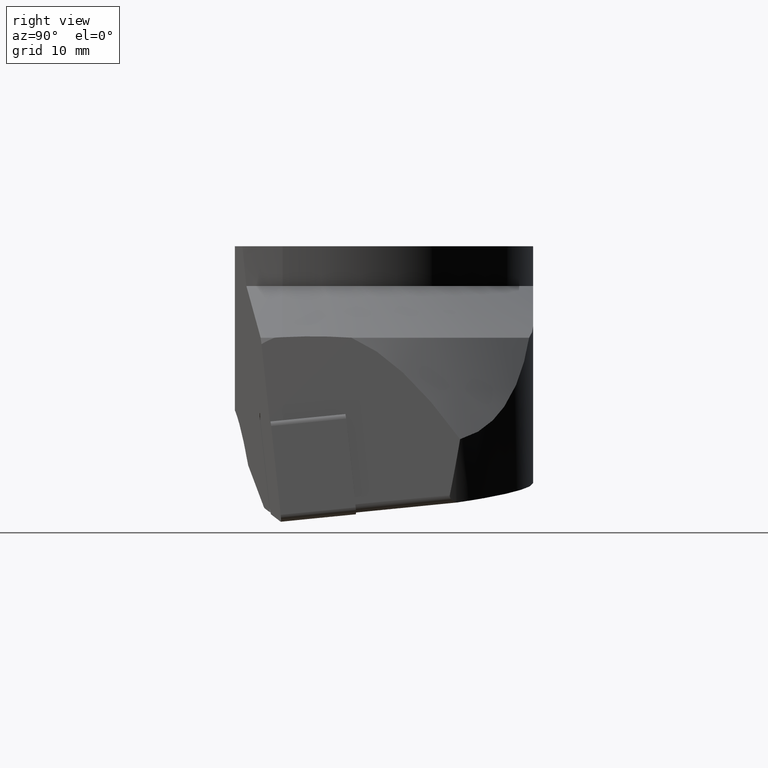
[diagram: clean part render]
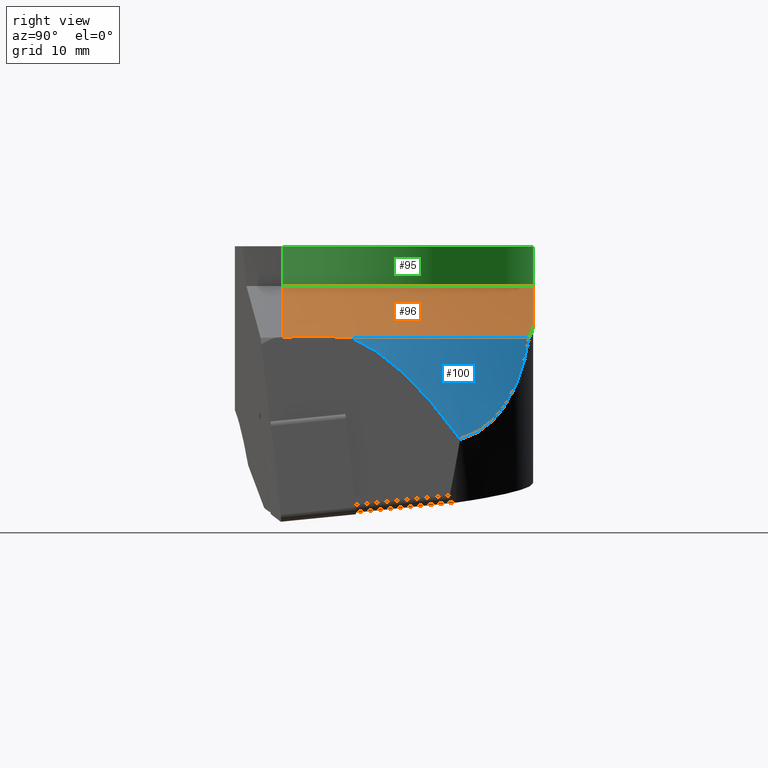
[diagram: same view with three faces highlighted in distinct colors, each labeled with its STEP entity id]
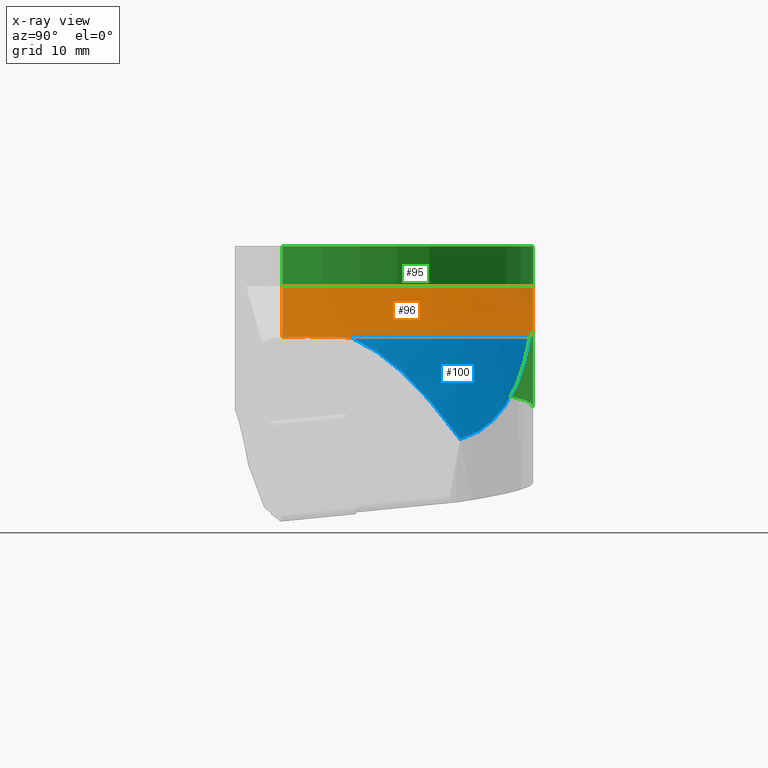
[diagram: x-ray of the same camera — body ghosted, the three highlighted faces saturated]
A machine part, right view with three faces highlighted in distinct colors.
The next image is the same camera in x-ray (body ghosted, the three faces saturated) — at least one of them is partly hidden behind the body in this view.
Their STEP definitions:

[orange] entity #96 — the highlighted conical surface has half-angle 60 deg.
#96=ADVANCED_FACE('',(#150),#151,.T.);
#150=FACE_OUTER_BOUND('',#214,.T.);
#151=CONICAL_SURFACE('',#215,33.0935274423847,1.0471975488034);
#214=EDGE_LOOP('',(#423,#424,#425,#426,#427,#428));
#215=AXIS2_PLACEMENT_3D('',#429,#430,#431);
#423=ORIENTED_EDGE('',*,*,#582,.T.);
#424=ORIENTED_EDGE('',*,*,#545,.T.);
#425=ORIENTED_EDGE('',*,*,#583,.F.);
#426=ORIENTED_EDGE('',*,*,#567,.T.);
#427=ORIENTED_EDGE('',*,*,#565,.F.);
#428=ORIENTED_EDGE('',*,*,#577,.T.);
#429=CARTESIAN_POINT('',(-6.21724893790088E-014,3.33066907387547E-014,-5.92002348494438));
#430=DIRECTION('',(-0.0,-0.0,-1.0));
#431=DIRECTION('',(-0.707106781186546,0.707106781186549,0.0));
#545=EDGE_CURVE('',#660,#658,#661,.T.);
#565=EDGE_CURVE('',#694,#696,#697,.T.);
#567=EDGE_CURVE('',#699,#696,#700,.T.);
#577=EDGE_CURVE('',#694,#715,#717,.T.);
#582=EDGE_CURVE('',#715,#660,#724,.T.);
#583=EDGE_CURVE('',#699,#658,#725,.T.);
#658=VERTEX_POINT('',#825);
#660=VERTEX_POINT('',#836);
#661=CIRCLE('',#837,69.664420047728);
#694=VERTEX_POINT('',#879);
#696=VERTEX_POINT('',#882);
#697=(B_SPLINE_CURVE(2,(#884,#885,#886),.UNSPECIFIED.,.F.,.F.)B_SPLINE_CURVE_WITH_KNOTS((3,3),(29.7690639770025,56.1841265537815),.UNSPECIFIED.)RATIONAL_B_SPLINE_CURVE((1.0,1.0760277212544,1.01713168299413))BOUNDED_CURVE()REPRESENTATION_ITEM('')GEOMETRIC_REPRESENTATION_ITEM()CURVE());
#699=VERTEX_POINT('',#895);
#700=B_SPLINE_CURVE_WITH_KNOTS('',3,(#896,#897,#898,#899,#900,#901),.UNSPECIFIED.,.F.,.F.,(4,2,4),(3.85715846001028,5.74178911328001,8.4775333503241),.UNSPECIFIED.);
#715=VERTEX_POINT('',#951);
#717=CIRCLE('',#954,31.5);
#724=LINE('',#968,#969);
#725=CIRCLE('',#970,42.7583302491977);
#825=CARTESIAN_POINT('',(41.8750476040882,8.64610859605659,-11.5));
#836=CARTESIAN_POINT('',(42.649112442664,4.617897E-015,-11.4369430699974));
#837=AXIS2_PLACEMENT_3D('',#1055,#1056,#1057);
#879=CARTESIAN_POINT('',(0.0,31.5,-5.0));
#882=CARTESIAN_POINT('',(25.0,31.5,-10.0316346940355));
#884=CARTESIAN_POINT('',(0.0,31.5,-5.0));
#885=CARTESIAN_POINT('',(10.9809591383467,31.5,-5.0));
#886=CARTESIAN_POINT('',(25.0,31.5,-10.0316346940355));
#895=CARTESIAN_POINT('',(29.4512462150672,30.9983693454825,-11.5));
#896=CARTESIAN_POINT('',(29.4512462150672,30.9983693454825,-11.5));
#897=CARTESIAN_POINT('',(28.8547898446183,31.1345332530571,-11.3198002116523));
#898=CARTESIAN_POINT('',(28.2523575804097,31.2432334774766,-11.1313465735817));
#899=CARTESIAN_POINT('',(26.7680451375148,31.441419094313,-10.6500527578228));
#900=CARTESIAN_POINT('',(25.8826901717809,31.5,-10.3484448479002));
#901=CARTESIAN_POINT('',(25.0,31.5,-10.0316346940355));
#951=CARTESIAN_POINT('',(31.5,6.569822E-015,-5.0));
#954=AXIS2_PLACEMENT_3D('',#1106,#1107,#1108);
#968=CARTESIAN_POINT('',(31.5,6.569822E-015,-5.0));
#969=VECTOR('',#1118,12.8738861399949);
#970=AXIS2_PLACEMENT_3D('',#1119,#1120,#1121);
#1055=CARTESIAN_POINT('',(48.6491376566123,4.38993371617346,-80.7035266437949));
#1056=DIRECTION('',(-0.991771345779423,-0.0894587448987841,-0.091579095059992));
#1057=DIRECTION('',(-0.086127541287756,-0.063015434753722,0.994289244442745));
#1106=CARTESIAN_POINT('',(0.0,1.608123E-015,-5.0));
#1107=DIRECTION('',(0.0,0.0,-1.0));
#1108=DIRECTION('',(1.0,0.0,0.0));
#1118=DIRECTION('',(0.866025403784441,-1.51619E-016,-0.499999999999996));
#1119=CARTESIAN_POINT('',(0.0,4.494702E-015,-11.5));
#1120=DIRECTION('',(0.0,0.0,-1.0));
#1121=DIRECTION('',(1.0,0.0,0.0));

[blue] entity #100 — the highlighted conical surface has half-angle 20 deg.
#100=ADVANCED_FACE('',(#158),#159,.T.);
#158=FACE_OUTER_BOUND('',#222,.T.);
#159=CONICAL_SURFACE('',#223,43.4193818987798,0.349065849601138);
#222=EDGE_LOOP('',(#454,#455,#456));
#223=AXIS2_PLACEMENT_3D('',#457,#458,#459);
#454=ORIENTED_EDGE('',*,*,#544,.T.);
#455=ORIENTED_EDGE('',*,*,#568,.T.);
#456=ORIENTED_EDGE('',*,*,#583,.T.);
#457=CARTESIAN_POINT('',(0.0,3.33066907387547E-015,-13.3162244555885));
#458=DIRECTION('',(-0.0,-0.0,-1.0));
#459=DIRECTION('',(-0.485818585792204,0.874059667127401,0.0));
#544=EDGE_CURVE('',#658,#656,#659,.T.);
#568=EDGE_CURVE('',#656,#699,#701,.T.);
#583=EDGE_CURVE('',#699,#658,#725,.T.);
#656=VERTEX_POINT('',#823);
#658=VERTEX_POINT('',#825);
#659=(B_SPLINE_CURVE(2,(#827,#828,#829),.UNSPECIFIED.,.F.,.F.)B_SPLINE_CURVE_WITH_KNOTS((3,3),(0.001308509457713,18.9680444500576),.UNSPECIFIED.)RATIONAL_B_SPLINE_CURVE((1.00000267689721,1.01940205979572,1.00057965078299))BOUNDED_CURVE()REPRESENTATION_ITEM('')GEOMETRIC_REPRESENTATION_ITEM()CURVE());
#699=VERTEX_POINT('',#895);
#701=B_SPLINE_CURVE_WITH_KNOTS('',3,(#902,#903,#904,#905,#906,#907,#908,#909,#910,#911,#912,#913,#914,#915,#916,#917),.UNSPECIFIED.,.F.,.F.,(4,2,2,2,2,2,2,4),(26.1109510316236,27.6243507450446,29.7536378607249,31.8829249764053,35.5950819891459,39.3072390018865,43.019396014627,45.5276441190841),.UNSPECIFIED.);
#725=CIRCLE('',#970,42.7583302491977);
#823=CARTESIAN_POINT('',(41.8201863919239,22.320412642107,-24.2635711891194));
#825=CARTESIAN_POINT('',(41.8750476040882,8.64610859605659,-11.5));
#827=CARTESIAN_POINT('',(41.8750476040882,8.64610859605659,-11.5));
#828=CARTESIAN_POINT('',(41.5450705930082,15.0210800201369,-14.1538283420422));
#829=CARTESIAN_POINT('',(41.8201863919239,22.320412642107,-24.2635711891194));
#895=CARTESIAN_POINT('',(29.4512462150672,30.9983693454825,-11.5));
#902=CARTESIAN_POINT('',(41.8201863919239,22.320412642107,-24.2635711891194));
#903=CARTESIAN_POINT('',(41.5386844360627,22.7580036586318,-24.1473489734073));
#904=CARTESIAN_POINT('',(41.2411248201253,23.1826988003321,-23.9991149772399));
#905=CARTESIAN_POINT('',(40.4998929520124,24.1596671597686,-23.5748307826488));
#906=CARTESIAN_POINT('',(40.0452306675594,24.6942809375487,-23.2706201639303));
#907=CARTESIAN_POINT('',(39.1294086899895,25.6706677807837,-22.5874070547748));
#908=CARTESIAN_POINT('',(38.6683116967142,26.1126169081332,-22.2085721524252));
#909=CARTESIAN_POINT('',(37.4484016005857,27.1877367133264,-21.1374408521392));
#910=CARTESIAN_POINT('',(36.6399120620046,27.7929350199541,-20.3491418322813));
#911=CARTESIAN_POINT('',(35.0028898544862,28.8461661155331,-18.6155059005941));
#912=CARTESIAN_POINT('',(34.1743983612639,29.2943106041819,-17.6701979705059));
#913=CARTESIAN_POINT('',(32.5420781104469,30.0451915163858,-15.690207472594));
#914=CARTESIAN_POINT('',(31.7380091014324,30.3481599014561,-14.6552419392213));
#915=CARTESIAN_POINT('',(30.4446790255744,30.7523766728924,-12.907753267095));
#916=CARTESIAN_POINT('',(29.937837116258,30.8872864200934,-12.1995750916439));
#917=CARTESIAN_POINT('',(29.4512462150672,30.9983693454825,-11.5));
#970=AXIS2_PLACEMENT_3D('',#1119,#1120,#1121);
#1119=CARTESIAN_POINT('',(0.0,4.494702E-015,-11.5));
#1120=DIRECTION('',(0.0,0.0,-1.0));
#1121=DIRECTION('',(1.0,0.0,0.0));

[green] entity #95 — the highlighted cylindrical surface (partial cylindrical patch) has radius 31.5 mm, axis along (-0, -0, -1).
#95=ADVANCED_FACE('',(#148),#149,.T.);
#148=FACE_OUTER_BOUND('',#212,.T.);
#149=CYLINDRICAL_SURFACE('',#213,31.5);
#212=EDGE_LOOP('',(#412,#413,#414,#415,#416,#417,#418,#419));
#213=AXIS2_PLACEMENT_3D('',#420,#421,#422);
#412=ORIENTED_EDGE('',*,*,#576,.T.);
#413=ORIENTED_EDGE('',*,*,#577,.F.);
#414=ORIENTED_EDGE('',*,*,#564,.F.);
#415=ORIENTED_EDGE('',*,*,#578,.F.);
#416=ORIENTED_EDGE('',*,*,#579,.F.);
#417=ORIENTED_EDGE('',*,*,#580,.T.);
#418=ORIENTED_EDGE('',*,*,#572,.T.);
#419=ORIENTED_EDGE('',*,*,#581,.T.);
#420=CARTESIAN_POINT('',(-1.22124532708767E-014,4.44089209850063E-015,-4.06702151976236));
#421=DIRECTION('',(-0.0,-0.0,-1.0));
#422=DIRECTION('',(0.0,-1.0,0.0));
#564=EDGE_CURVE('',#692,#694,#695,.T.);
#572=EDGE_CURVE('',#706,#707,#708,.T.);
#576=EDGE_CURVE('',#714,#715,#716,.T.);
#577=EDGE_CURVE('',#694,#715,#717,.T.);
#578=EDGE_CURVE('',#718,#692,#719,.T.);
#579=EDGE_CURVE('',#720,#718,#721,.T.);
#580=EDGE_CURVE('',#720,#706,#722,.T.);
#581=EDGE_CURVE('',#707,#714,#723,.T.);
#692=VERTEX_POINT('',#877);
#694=VERTEX_POINT('',#879);
#695=LINE('',#880,#881);
#706=VERTEX_POINT('',#940);
#707=VERTEX_POINT('',#941);
#708=LINE('',#942,#943);
#714=VERTEX_POINT('',#950);
#715=VERTEX_POINT('',#951);
#716=LINE('',#952,#953);
#717=CIRCLE('',#954,31.5);
#718=VERTEX_POINT('',#955);
#719=B_SPLINE_CURVE_WITH_KNOTS('',3,(#956,#957,#958,#959,#960,#961,#962,#963),.UNSPECIFIED.,.F.,.F.,(4,2,2,4),(34.5192249948421,34.6865026905277,36.5950476753527,37.7222472083368),.UNSPECIFIED.);
#720=VERTEX_POINT('',#964);
#721=ELLIPSE('',#965,31.6203248826154,31.5);
#722=ELLIPSE('',#966,44.5477272147525,31.5);
#723=CIRCLE('',#967,31.5);
#877=CARTESIAN_POINT('',(0.0,31.5,-20.3350832689629));
#879=CARTESIAN_POINT('',(0.0,31.5,-5.0));
#880=CARTESIAN_POINT('',(0.0,31.5,-20.3350832689629));
#881=VECTOR('',#1094,15.3350832689629);
#940=CARTESIAN_POINT('',(-31.5,-3.85751E-015,-6.99999999999999));
#941=CARTESIAN_POINT('',(-31.5,-3.85751E-015,0.0));
#942=CARTESIAN_POINT('',(-31.5,-3.85751E-015,-6.99999999999999));
#943=VECTOR('',#1097,6.99999999999999);
#950=CARTESIAN_POINT('',(31.5,3.85751E-015,0.0));
#951=CARTESIAN_POINT('',(31.5,6.569822E-015,-5.0));
#952=CARTESIAN_POINT('',(31.5,3.85751E-015,0.0));
#953=VECTOR('',#1105,5.0);
#954=AXIS2_PLACEMENT_3D('',#1106,#1107,#1108);
#955=CARTESIAN_POINT('',(-3.2568851450468,31.3311777492001,-19.7761060381651));
#956=CARTESIAN_POINT('',(-3.2568851450468,31.3311777492001,-19.7761060381651));
#957=CARTESIAN_POINT('',(-3.2004619526019,31.3370429566552,-19.781042427864));
#958=CARTESIAN_POINT('',(-3.1439961596822,31.3427585226833,-19.7862240671884));
#959=CARTESIAN_POINT('',(-2.4428140565868,31.4118178551001,-19.8535835601211));
#960=CARTESIAN_POINT('',(-1.79317133802311,31.4556032448885,-19.9477258721226));
#961=CARTESIAN_POINT('',(-0.762483632227294,31.4930988420898,-20.1501772897238));
#962=CARTESIAN_POINT('',(-0.380311468236002,31.5,-20.2368872701063));
#963=CARTESIAN_POINT('',(0.0,31.5,-20.3350832689629));
#964=CARTESIAN_POINT('',(-20.2068212154876,24.164734146382,-18.2931787845124));
#965=AXIS2_PLACEMENT_3D('',#1109,#1110,#1111);
#966=AXIS2_PLACEMENT_3D('',#1112,#1113,#1114);
#967=AXIS2_PLACEMENT_3D('',#1115,#1116,#1117);
#1094=DIRECTION('',(0.0,0.0,1.0));
#1097=DIRECTION('',(0.0,0.0,1.0));
#1105=DIRECTION('',(0.0,0.0,-1.0));
#1106=CARTESIAN_POINT('',(0.0,1.608123E-015,-5.0));
#1107=DIRECTION('',(0.0,0.0,-1.0));
#1108=DIRECTION('',(1.0,0.0,0.0));
#1109=CARTESIAN_POINT('',(0.0,-5.012655E-015,-20.0610465667627));
#1110=DIRECTION('',(-0.087155742747658,3.882801E-017,-0.996194698091746));
#1111=DIRECTION('',(-0.996194698091746,1.41112E-016,0.087155742747658));
#1112=CARTESIAN_POINT('',(0.0,1.648511E-014,-38.5));
#1113=DIRECTION('',(0.707106781186548,-8.59341199999998E-017,0.707106781186548));
#1114=DIRECTION('',(0.707106781186548,2.274257E-016,-0.707106781186548));
#1115=CARTESIAN_POINT('',(0.0,-6.123234E-016,0.0));
#1116=DIRECTION('',(0.0,0.0,-1.0));
#1117=DIRECTION('',(1.0,0.0,0.0));